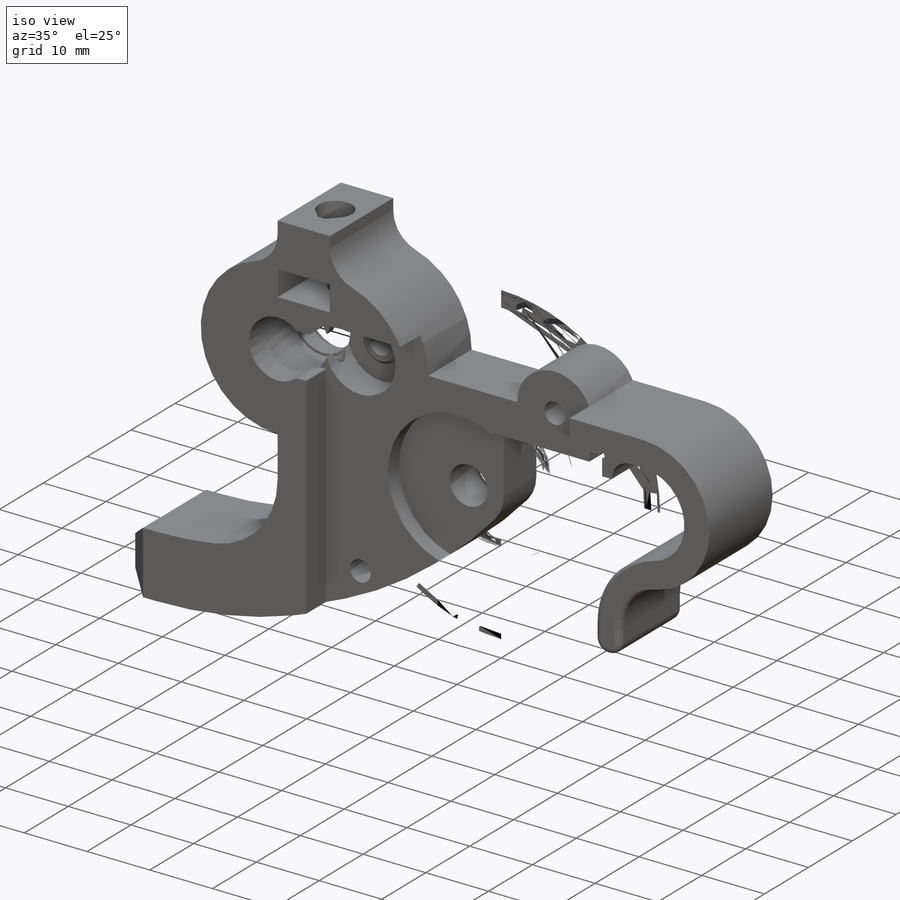
[diagram: iso view]
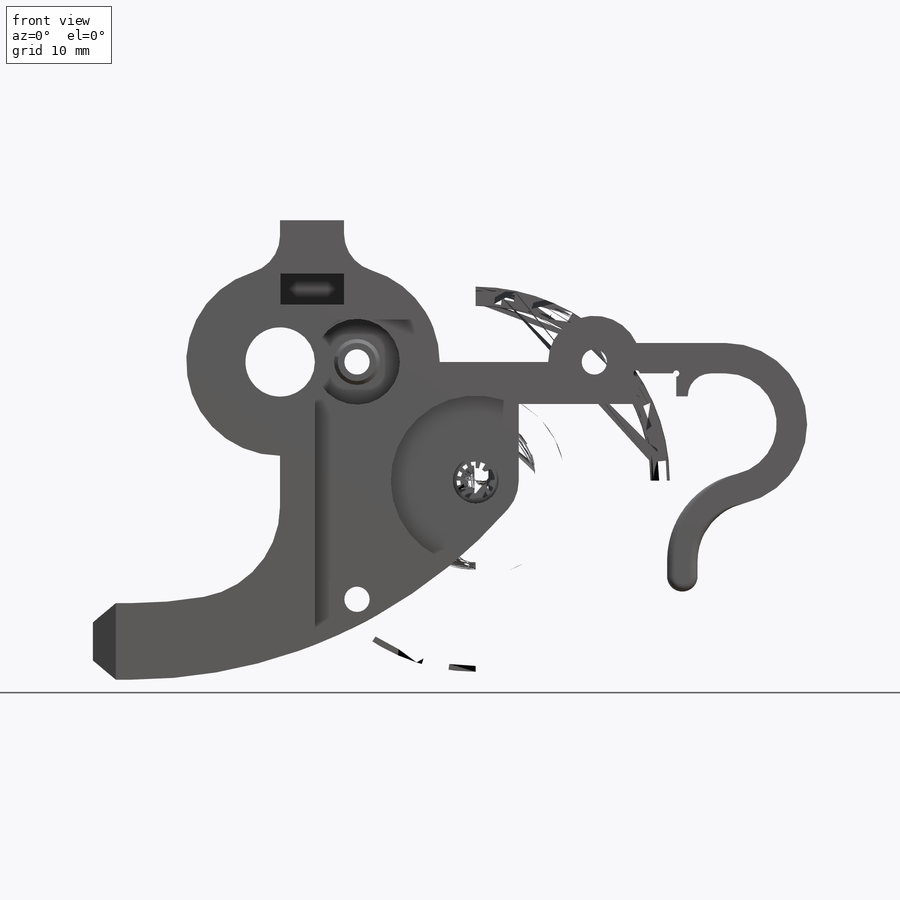
[diagram: front view]
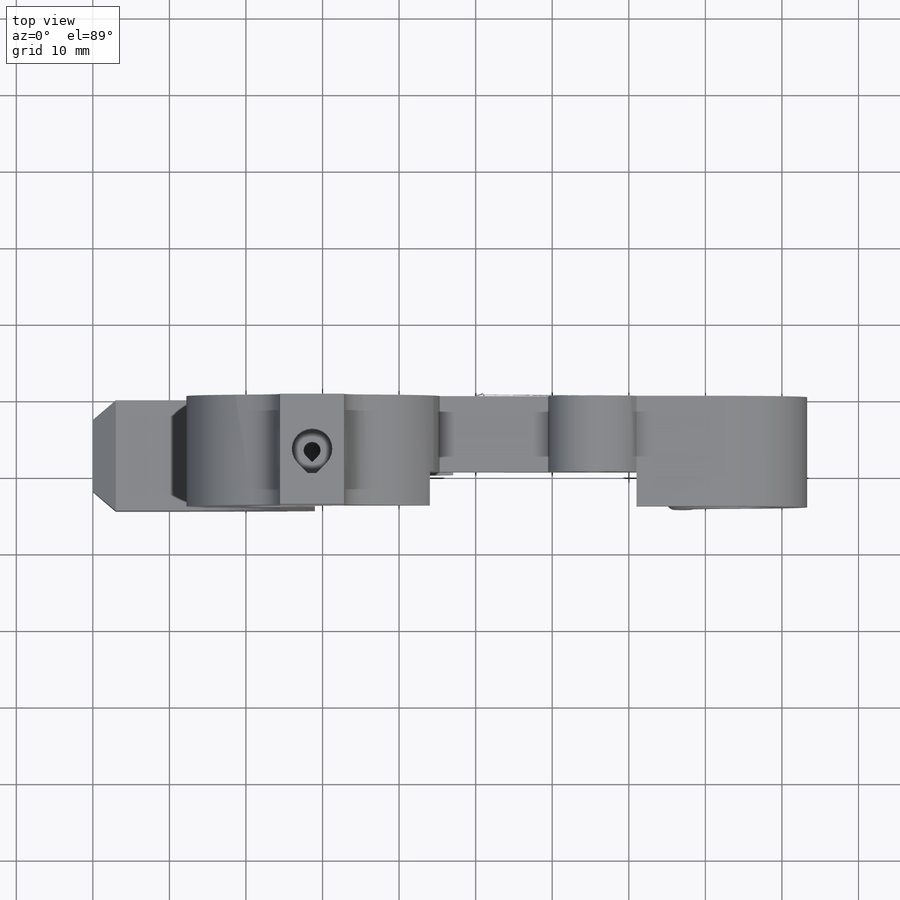
[diagram: top view]
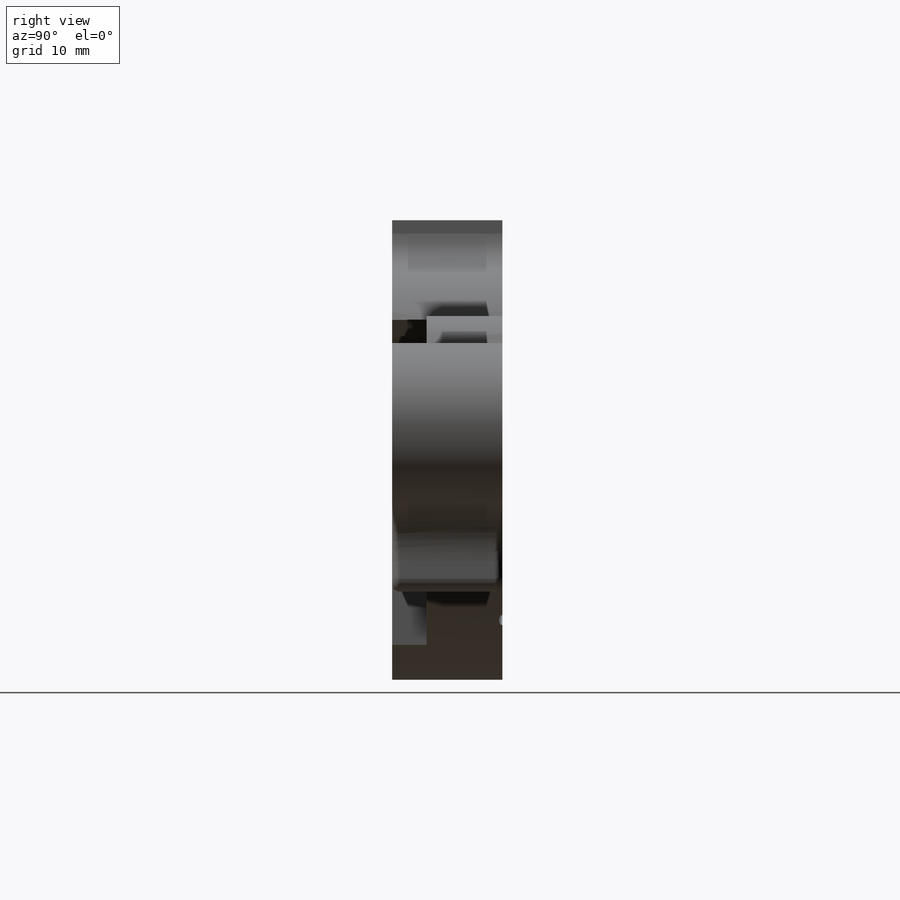
[diagram: right view]
SOLIDWORKS PART (.sldprt)
format: sldprt  version: not decoded by parser v0  size: 997,376 bytes
history: native  units: mm
features: sketch x17, cut_extrude x11, chamfer x8, plane x4, sweep x3, extrude x2, fillet x2, cut_revolve x2, material x1 (+13 scaffold rows collapsed)
feature tree (63):
  scaffold x13  (default folders/planes/origin — collapsed)
  material  "Custom Plastic"
  sketch  "Sketch1"  dims[c1.D2=22.0mm c1.D3=31.0mm c1.D4=3.3mm c1.D5=6.0mm c1.D7=~16.725157mm c1.D16=2.0mm c1.D20=0.8mm c1.D21=2.0mm c2.D16=2.0mm c2.D1=42.0mm c2.D3=~54.334537mm c2.D6=32.0mm c2.D7=34.0mm c2.D10=14.0mm c2.D9=14.0mm c3.D10=7.0mm c3.D6=24.5mm c3.D8=50.0mm c3.D11=26.0mm c3.D12=5.0mm c3.D9=14.0mm c3.D13=17.2mm c3.D7=13.2mm c3.D14=10.0mm c3.D15=10.05mm c4.D7=4.0mm c4.D17=1.5mm c4.D18=3.0mm c4.D19=5.2mm c4.D21=2.0mm c4.D8=2.0mm c4.D9=2.0mm c4.D6=2.0mm c5.D8=2.0mm]
  extrude  "Boss-Extrude1"  Depth=14.4mm
  sketch  "Sketch2"  dims[D3=7.6mm D4=9.1mm D5=10.0mm D6=22.0mm D1=1.75mm D2=0.5mm D7=~23.300413mm]
  cut_extrude  "Cut-Extrude1"  [1 undecoded]
  sketch  "Sketch3"  dims[D1=11.2mm]
  cut_extrude  "Cut-Extrude2"  Depth=9.5mm
  sketch  "Sketch5"  dims[D1=22.2mm]
  cut_extrude  "Cut-Extrude4"  Depth=7mm
  chamfer  "Chamfer9"  Distance=1mm Angle=75deg
  sketch  "Sketch7"  dims[D1=5.0mm]
  extrude  "Boss-Extrude3"  Depth=0.5mm
  chamfer  "Chamfer2"  Distance=0.5mm Angle=45deg
  plane  "Plane1"  Offset=7.2mm
  fillet  "Fillet2"  Radius=12mm
  sketch  "Sketch8"  dims[D2=10.0mm D1=1.75mm D3=4.0mm]
  sketch  "Sketch10"  dims[D1=2.5mm D2=0.4mm]
  sweep  "Cut-Sweep2"
  sketch  "Sketch9"  dims[D1=2.2mm D2=0.4mm]
  cut_extrude  "Cut-Extrude5"  [1 undecoded]
  plane  "Plane2"  Offset=7mm
  sketch  "Sketch14"  dims[c1.D1=8.3mm c1.D2=3.8mm c2.D1=2.75mm c2.D2=5.5mm]
  cut_extrude  "Cut-Extrude10"  Depth=4mm
  sketch  "Sketch15"  dims[D1=6.7mm]
  cut_extrude  "Cut-Extrude11"  Depth=14.3mm
  chamfer  "Chamfer4"  Distance=1.8mm Angle=45deg
  sketch  "Sketch18"
  cut_extrude  "Cut-Extrude13"  Depth=1.5mm
  chamfer  "Chamfer8"  Distance=0.1mm Angle=75deg
  sweep  "Axis2"
  plane  "Plane3"
  sketch  "Sketch19"  dims[D1=0.95mm]
  cut_revolve  "Cut-Revolve1"  Angle=360deg
  sketch  "Sketch20"  dims[D1=42.0mm D2=21.0mm]
  cut_extrude  "Cut-Extrude14"  Depth=4.5mm
  sketch  "Sketch21"  dims[D1=5.3mm D2=0.53mm]
  cut_extrude  "Cut-Extrude15"  [1 undecoded]
  fillet  "Fillet1"  Radius=5mm
  chamfer  "Chamfer10"  Distance=3mm Angle=40deg
  chamfer  "Chamfer11"  Distance=3mm Angle=40deg
  sketch  "Sketch22"  dims[D1=3.4mm]
  cut_extrude  "Cut-Extrude16"  Depth=4.5mm
  chamfer  "Chamfer12"  Distance=1.5mm Angle=30deg
  sketch  "Sketch23"  dims[c1.D1=0.2mm c1.D2=1.5mm c2.D1=2.0mm c2.D2=1.0mm c2.D3=1.0mm]
  cut_extrude  "Cut-Extrude17"  [1 undecoded]
  sweep  "Axis3"
  plane  "Plane4"
  sketch  "Sketch24"  dims[D1=4.0mm D2=4.0mm D3=0.4mm]
  cut_revolve  "Cut-Revolve2"  Angle=360deg
  chamfer  "Chamfer13"  Distance=0.4mm Angle=45deg
decode coverage: 37 of 45 modeling features carry decoded parameters
note: ~ marks probable driven/reference dimensions
note: 4 parameter values undecoded
summary: no parameter record found for 4 features
note: suppression state not decoded; provenance and decode notes live in map.json
